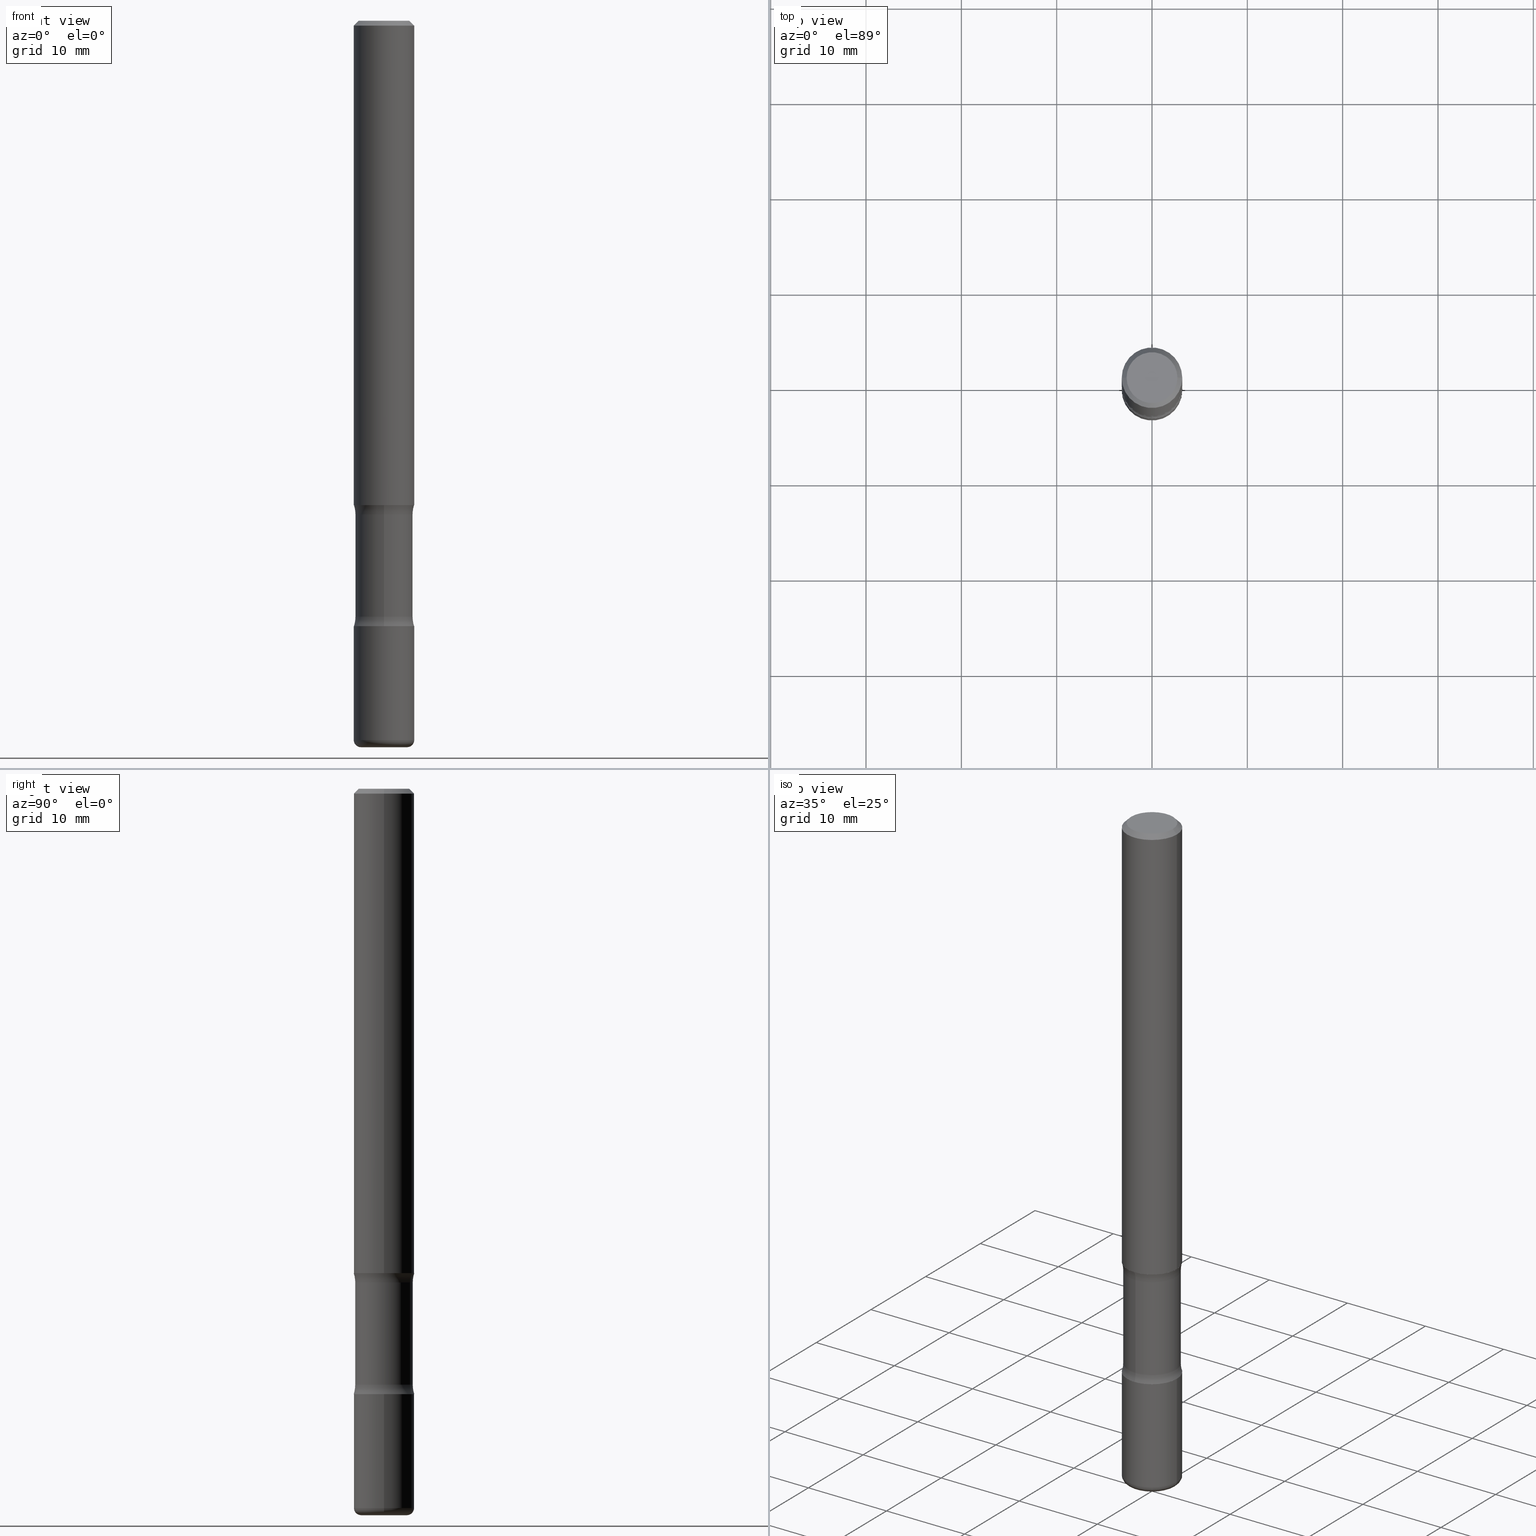
[diagram: canonical four-view strip — front | top / right | iso, engineering-drawing reading convention]
A machine part, canonical four-view strip (front | top / right | iso — engineering-drawing reading convention). The complete STEP part file that produces these views, byte-faithful:
ISO-10303-21;
HEADER;
FILE_DESCRIPTION (( 'STEP AP203' ),
    '1' );
FILE_NAME ('37797.STEP',
    '2024-03-02T00:22:59',
    ( '' ),
    ( '' ),
    'SwSTEP 2.0',
    'SolidWorks 2023',
    '' );
FILE_SCHEMA (( 'CONFIG_CONTROL_DESIGN' ));
ENDSEC;

DATA;
#1 = ORIENTED_EDGE ( 'NONE', *, *, #272, .F. ) ;
#2 = VECTOR ( 'NONE', #69, 39.37007874015748143 ) ;
#3 = CARTESIAN_POINT ( 'NONE',  ( -8.575622497213937192E-16, -0.1250000000000071609, -1.999999999999999334 ) ) ;
#4 = CARTESIAN_POINT ( 'NONE',  ( -1.043851414335219820E-46, 1.490343170380447200E-32, 4.268512490100411279E-18 ) ) ;
#5 = ORIENTED_EDGE ( 'NONE', *, *, #387, .F. ) ;
#6 = LINE ( 'NONE', #166, #11 ) ;
#7 = PLANE ( 'NONE',  #43 ) ;
#8 = DIRECTION ( 'NONE',  ( -1.000000000000000000, 6.982962677686265922E-15, -4.883557194083112340E-29 ) ) ;
#9 = ADVANCED_FACE ( 'NONE', ( #50 ), #171, .T. ) ;
#10 = CIRCLE ( 'NONE', #245, 0.1049999999999997879 ) ;
#11 = VECTOR ( 'NONE', #168, 39.37007874015748143 ) ;
#12 = DIRECTION ( 'NONE',  ( 2.543540764811263793E-29, -3.351036712181296563E-15, -1.000000000000000000 ) ) ;
#13 = CARTESIAN_POINT ( 'NONE',  ( 6.018222341714267541E-29, -8.592426509779609334E-15, -2.460968762510010066 ) ) ;
#14 = VERTEX_POINT ( 'NONE', #504 ) ;
#15 = FACE_OUTER_BOUND ( 'NONE', #219, .T. ) ;
#16 = ADVANCED_FACE ( 'NONE', ( #439 ), #514, .F. ) ;
#17 = CARTESIAN_POINT ( 'NONE',  ( -0.1250000000000000000, -9.481521156664016174E-15, -2.970000000000000195 ) ) ;
#18 = DIRECTION ( 'NONE',  ( 6.982962677686265133E-15, 1.000000000000000000, -4.601007147224022844E-15 ) ) ;
#19 = CC_DESIGN_PERSON_AND_ORGANIZATION_ASSIGNMENT ( #196, #499, ( #165 ) ) ;
#20 = ORIENTED_EDGE ( 'NONE', *, *, #411, .T. ) ;
#21 = CARTESIAN_POINT ( 'NONE',  ( 0.1250000000000000555, -9.601573681818646704E-15, -2.499999999999999556 ) ) ;
#22 = CARTESIAN_POINT ( 'NONE',  ( 0.1249999999999997918, -9.273918764983029686E-16, -0.02000000000000002470 ) ) ;
#23 = ORIENTED_EDGE ( 'NONE', *, *, #396, .T. ) ;
#24 = DIRECTION ( 'NONE',  ( 1.000000000000000000, -6.982962677686271444E-15, 4.883557194083115143E-29 ) ) ;
#25 = ORIENTED_EDGE ( 'NONE', *, *, #331, .F. ) ;
#26 = TOROIDAL_SURFACE ( 'NONE', #471, 0.2437500000000000500, 0.1249999999999999584 ) ;
#27 = VERTEX_POINT ( 'NONE', #461 ) ;
#28 = LOCAL_TIME ( 19, 22, 59.00000000000000000, #550 ) ;
#29 = DIRECTION ( 'NONE',  ( -2.445468806185136597E-29, 3.491481338843145583E-15, 1.000000000000000000 ) ) ;
#30 = CARTESIAN_POINT ( 'NONE',  ( -0.1250000000000000278, -2.638217732531448450E-15, -2.000000000000000000 ) ) ;
#31 = PRODUCT ( '37797', '37797', '', ( #206 ) ) ;
#32 = ORIENTED_EDGE ( 'NONE', *, *, #468, .T. ) ;
#33 = VERTEX_POINT ( 'NONE', #484 ) ;
#34 = ADVANCED_FACE ( 'NONE', ( #48 ), #7, .F. ) ;
#35 = CARTESIAN_POINT ( 'NONE',  ( -8.575622497213801114E-16, -0.1250000000000087153, -2.499999999999999112 ) ) ;
#36 = APPLICATION_PROTOCOL_DEFINITION ( 'international standard', 'config_control_design', 1994, #532 ) ;
#37 = CARTESIAN_POINT ( 'NONE',  ( 6.113672015462840371E-29, -8.728703347107863365E-15, -2.499999999999999556 ) ) ;
#38 = CC_DESIGN_DATE_AND_TIME_ASSIGNMENT ( #157, #466, ( #310 ) ) ;
#39 =( GEOMETRIC_REPRESENTATION_CONTEXT ( 3 ) GLOBAL_UNCERTAINTY_ASSIGNED_CONTEXT ( ( #293 ) ) GLOBAL_UNIT_ASSIGNED_CONTEXT ( ( #248, #512, #290 ) ) REPRESENTATION_CONTEXT ( 'NONE', 'WORKASPACE' ) );
#40 = CC_DESIGN_SECURITY_CLASSIFICATION ( #165, ( #237 ) ) ;
#41 = ADVANCED_FACE ( 'NONE', ( #131 ), #141, .T. ) ;
#42 = CARTESIAN_POINT ( 'NONE',  ( 0.000000000000000000, 0.000000000000000000, 0.000000000000000000 ) ) ;
#43 = AXIS2_PLACEMENT_3D ( 'NONE', #90, #233, #301 ) ;
#44 = CIRCLE ( 'NONE', #335, 0.1187499999999999806 ) ;
#45 = CARTESIAN_POINT ( 'NONE',  ( 0.09500000000000015377, -1.103308103074433958E-14, -2.970000000000000195 ) ) ;
#46 = EDGE_CURVE ( 'NONE', #62, #167, #178, .T. ) ;
#47 = DIRECTION ( 'NONE',  ( 6.982962677686266711E-15, 1.000000000000000000, -3.351036712181296563E-15 ) ) ;
#48 = FACE_OUTER_BOUND ( 'NONE', #366, .T. ) ;
#49 = AXIS2_PLACEMENT_3D ( 'NONE', #230, #533, #511 ) ;
#50 = FACE_OUTER_BOUND ( 'NONE', #359, .T. ) ;
#51 = FACE_OUTER_BOUND ( 'NONE', #274, .T. ) ;
#52 = DIRECTION ( 'NONE',  ( 2.543540764811263793E-29, -3.351036712181296563E-15, -1.000000000000000000 ) ) ;
#53 = DIRECTION ( 'NONE',  ( 1.000000000000000000, -6.982962677686271444E-15, 4.883557194083115143E-29 ) ) ;
#54 = DIRECTION ( 'NONE',  ( -2.445468806185136597E-29, 3.491481338843145583E-15, 1.000000000000000000 ) ) ;
#55 = CARTESIAN_POINT ( 'NONE',  ( 7.336406418555408669E-29, -1.047444401652943478E-14, -2.999999999999999556 ) ) ;
#56 = ORIENTED_EDGE ( 'NONE', *, *, #105, .T. ) ;
#57 = CARTESIAN_POINT ( 'NONE',  ( 6.113672015462840371E-29, -8.728703347107863365E-15, -2.499999999999999556 ) ) ;
#58 = CIRCLE ( 'NONE', #492, 0.1250000000000000555 ) ;
#59 = CARTESIAN_POINT ( 'NONE',  ( 0.1250000000000000000, -1.124256991107492790E-14, -2.970000000000000195 ) ) ;
#60 = ORIENTED_EDGE ( 'NONE', *, *, #250, .T. ) ;
#61 = EDGE_CURVE ( 'NONE', #370, #441, #316, .T. ) ;
#62 = VERTEX_POINT ( 'NONE', #17 ) ;
#63 = ORIENTED_EDGE ( 'NONE', *, *, #317, .T. ) ;
#64 = CARTESIAN_POINT ( 'NONE',  ( 7.336406418555408669E-29, -1.047444401652943478E-14, -2.999999999999999556 ) ) ;
#65 = TOROIDAL_SURFACE ( 'NONE', #525, 0.09500000000000015377, 0.02999999999999969705 ) ;
#66 = ORIENTED_EDGE ( 'NONE', *, *, #396, .F. ) ;
#67 = ADVANCED_FACE ( 'NONE', ( #15 ), #392, .T. ) ;
#68 = COORDINATED_UNIVERSAL_TIME_OFFSET ( 5, 0, .BEHIND. ) ;
#69 = DIRECTION ( 'NONE',  ( 2.543540764811263793E-29, -3.351036712181296563E-15, -1.000000000000000000 ) ) ;
#70 = DIRECTION ( 'NONE',  ( -2.445468806185136597E-29, 3.491481338843145583E-15, 1.000000000000000000 ) ) ;
#71 = DIRECTION ( 'NONE',  ( 2.543540764811263793E-29, -3.351036712181296563E-15, -1.000000000000000000 ) ) ;
#72 = EDGE_CURVE ( 'NONE', #198, #27, #409, .T. ) ;
#73 = AXIS2_PLACEMENT_3D ( 'NONE', #89, #172, #226 ) ;
#74 = ORGANIZATION ( 'UNSPECIFIED', 'UNSPECIFIED', '' ) ;
#75 = ORIENTED_EDGE ( 'NONE', *, *, #105, .F. ) ;
#76 = DIRECTION ( 'NONE',  ( 6.982962677686265922E-15, 1.000000000000000000, -4.370956789862819572E-15 ) ) ;
#77 = APPLICATION_PROTOCOL_DEFINITION ( 'international standard', 'config_control_design', 1994, #251 ) ;
#78 = CIRCLE ( 'NONE', #376, 0.1250000000000000278 ) ;
#79 = ADVANCED_FACE ( 'NONE', ( #169 ), #383, .F. ) ;
#80 = DIRECTION ( 'NONE',  ( -1.000000000000000000, 6.982962677686265922E-15, -4.883557194083112340E-29 ) ) ;
#81 = CARTESIAN_POINT ( 'NONE',  ( 7.385442397868472267E-29, -1.040422170319851125E-14, -2.999999999999999556 ) ) ;
#82 = CARTESIAN_POINT ( 'NONE',  ( 4.938696304666674034E-29, -7.187535714856152812E-15, -2.039031237489990378 ) ) ;
#83 = DIRECTION ( 'NONE',  ( 1.000000000000000000, -6.982962677686269077E-15, 0.000000000000000000 ) ) ;
#84 = VERTEX_POINT ( 'NONE', #528 ) ;
#85 = AXIS2_PLACEMENT_3D ( 'NONE', #305, #54, #87 ) ;
#86 = AXIS2_PLACEMENT_3D ( 'NONE', #4, #122, #287 ) ;
#87 = DIRECTION ( 'NONE',  ( 1.000000000000000000, -6.982962677686266711E-15, 4.876176775795935793E-29 ) ) ;
#88 = ORIENTED_EDGE ( 'NONE', *, *, #243, .T. ) ;
#89 = CARTESIAN_POINT ( 'NONE',  ( 4.890937612370279289E-31, -6.982962677686299005E-17, -0.02000000000000002470 ) ) ;
#90 = CARTESIAN_POINT ( 'NONE',  ( 7.332110811570564466E-16, 0.1049999999999997879, -3.644712843334793412E-16 ) ) ;
#91 = ORIENTED_EDGE ( 'NONE', *, *, #289, .F. ) ;
#92 = CARTESIAN_POINT ( 'NONE',  ( -0.1249999999999997918, 8.030407079339189559E-16, -0.02000000000000002470 ) ) ;
#93 = ORIENTED_EDGE ( 'NONE', *, *, #425, .F. ) ;
#94 = AXIS2_PLACEMENT_3D ( 'NONE', #368, #447, #363 ) ;
#95 = AXIS2_PLACEMENT_3D ( 'NONE', #57, #229, #139 ) ;
#96 = ADVANCED_FACE ( 'NONE', ( #174 ), #26, .F. ) ;
#97 = EDGE_LOOP ( 'NONE', ( #436, #177 ) ) ;
#98 = DIRECTION ( 'NONE',  ( -2.445468806185136597E-29, 3.491481338843145583E-15, 1.000000000000000000 ) ) ;
#99 = APPROVAL ( #284, 'UNSPECIFIED' ) ;
#100 = CARTESIAN_POINT ( 'NONE',  ( 0.1049999999999997879, -8.238720831321562839E-16, 4.268512490105855498E-18 ) ) ;
#101 = ORIENTED_EDGE ( 'NONE', *, *, #183, .F. ) ;
#102 = FACE_OUTER_BOUND ( 'NONE', #184, .T. ) ;
#103 = DIRECTION ( 'NONE',  ( 2.543540764811263793E-29, -3.351036712181296563E-15, -1.000000000000000000 ) ) ;
#104 = ORIENTED_EDGE ( 'NONE', *, *, #425, .T. ) ;
#105 = EDGE_CURVE ( 'NONE', #84, #150, #10, .T. ) ;
#106 = AXIS2_PLACEMENT_3D ( 'NONE', #82, #395, #47 ) ;
#107 = AXIS2_PLACEMENT_3D ( 'NONE', #513, #291, #249 ) ;
#108 = DIRECTION ( 'NONE',  ( 1.000000000000000000, -6.982962677686270655E-15, 0.000000000000000000 ) ) ;
#109 = CIRCLE ( 'NONE', #86, 0.1049999999999997879 ) ;
#110 = DIRECTION ( 'NONE',  ( -2.445468806185136597E-29, 3.491481338843145583E-15, 1.000000000000000000 ) ) ;
#111 = CARTESIAN_POINT ( 'NONE',  ( 8.292268179753179304E-16, 0.1187499999999896000, -3.000000000000000444 ) ) ;
#112 = CALENDAR_DATE ( 2024, 1, 3 ) ;
#113 = MANIFOLD_SOLID_BREP ( 'Body-Move/Copy2[2]', #535 ) ;
#114 = PERSON_AND_ORGANIZATION ( #209, #74 ) ;
#115 = DIRECTION ( 'NONE',  ( 2.543540764811263793E-29, -3.351036712181296563E-15, -1.000000000000000000 ) ) ;
#116 = TOROIDAL_SURFACE ( 'NONE', #224, 0.2437500000000000222, 0.1250000000000000278 ) ;
#117 = AXIS2_PLACEMENT_3D ( 'NONE', #474, #80, #292 ) ;
#118 = PLANE ( 'NONE',  #393 ) ;
#119 = DATE_AND_TIME ( #510, #473 ) ;
#120 = EDGE_LOOP ( 'NONE', ( #201, #414, #134, #5 ) ) ;
#121 = LINE ( 'NONE', #337, #515 ) ;
#122 = DIRECTION ( 'NONE',  ( -2.445468806185136597E-29, 3.491481338843145583E-15, 1.000000000000000000 ) ) ;
#123 = EDGE_CURVE ( 'NONE', #319, #14, #235, .T. ) ;
#124 = DIRECTION ( 'NONE',  ( 1.000000000000000000, -6.982962677686266711E-15, 0.000000000000000000 ) ) ;
#125 = AXIS2_PLACEMENT_3D ( 'NONE', #537, #140, #309 ) ;
#126 = EDGE_LOOP ( 'NONE', ( #91, #338, #470, #352 ) ) ;
#127 = CIRCLE ( 'NONE', #236, 0.1187499999999999806 ) ;
#128 = CC_DESIGN_APPROVAL ( #218, ( #310 ) ) ;
#129 = CC_DESIGN_PERSON_AND_ORGANIZATION_ASSIGNMENT ( #416, #506, ( #31 ) ) ;
#130 = CARTESIAN_POINT ( 'NONE',  ( 4.941179176714029352E-29, -7.183980100768040122E-15, -2.039031237489990378 ) ) ;
#131 = FACE_OUTER_BOUND ( 'NONE', #406, .T. ) ;
#132 = EDGE_CURVE ( 'NONE', #357, #296, #549, .T. ) ;
#133 = DIRECTION ( 'NONE',  ( -2.445468806185136597E-29, 3.491481338843145583E-15, 1.000000000000000000 ) ) ;
#134 = ORIENTED_EDGE ( 'NONE', *, *, #404, .T. ) ;
#135 = ADVANCED_FACE ( 'NONE', ( #347 ), #349, .T. ) ;
#136 = DIRECTION ( 'NONE',  ( 2.543540764811263793E-29, -3.351036712181296563E-15, -1.000000000000000000 ) ) ;
#137 = CLOSED_SHELL ( 'NONE', ( #135, #358, #67, #282, #538, #494 ) ) ;
#138 = AXIS2_PLACEMENT_3D ( 'NONE', #297, #160, #391 ) ;
#139 = DIRECTION ( 'NONE',  ( 1.000000000000000000, -6.982962677686267499E-15, 0.000000000000000000 ) ) ;
#140 = DIRECTION ( 'NONE',  ( -2.445468806185136597E-29, 3.491481338843145583E-15, 1.000000000000000000 ) ) ;
#141 = CYLINDRICAL_SURFACE ( 'NONE', #85, 0.1249999999999999167 ) ;
#142 = ORIENTED_EDGE ( 'NONE', *, *, #468, .F. ) ;
#143 = EDGE_CURVE ( 'NONE', #441, #370, #501, .T. ) ;
#144 = CARTESIAN_POINT ( 'NONE',  ( 0.000000000000000000, 0.000000000000000000, 0.000000000000000000 ) ) ;
#145 = VERTEX_POINT ( 'NONE', #430 ) ;
#146 = CONICAL_SURFACE ( 'NONE', #299, 0.1249999999999997918, 0.7853981633974477239 ) ;
#147 = ORIENTED_EDGE ( 'NONE', *, *, #159, .F. ) ;
#148 = ADVANCED_FACE ( 'NONE', ( #261 ), #227, .F. ) ;
#149 = CARTESIAN_POINT ( 'NONE',  ( 8.292268179752933771E-16, 0.1187499999999928058, -2.039031237489990378 ) ) ;
#150 = VERTEX_POINT ( 'NONE', #100 ) ;
#151 = FACE_OUTER_BOUND ( 'NONE', #120, .T. ) ;
#152 = DIRECTION ( 'NONE',  ( -2.445468806185136597E-29, 3.491481338843145583E-15, 1.000000000000000000 ) ) ;
#153 = APPROVAL ( #373, 'UNSPECIFIED' ) ;
#154 = ORIENTED_EDGE ( 'NONE', *, *, #272, .T. ) ;
#155 = VECTOR ( 'NONE', #353, 39.37007874015748143 ) ;
#156 = APPROVAL_DATE_TIME ( #498, #153 ) ;
#157 = DATE_AND_TIME ( #112, #28 ) ;
#158 = CARTESIAN_POINT ( 'NONE',  ( 1.374422904781070061E-28, 2.198688627549184381E-15, -2.500000000000000000 ) ) ;
#159 = EDGE_CURVE ( 'NONE', #343, #225, #340, .T. ) ;
#160 = DIRECTION ( 'NONE',  ( 2.543540764811263793E-29, -3.351036712181296563E-15, -1.000000000000000000 ) ) ;
#161 = CARTESIAN_POINT ( 'NONE',  ( 6.014394471806022296E-29, -8.597908237357040299E-15, -2.460968762510010066 ) ) ;
#162 = DESIGN_CONTEXT ( 'detailed design', #532, 'design' ) ;
#163 = AXIS2_PLACEMENT_3D ( 'NONE', #223, #344, #437 ) ;
#164 = CONICAL_SURFACE ( 'NONE', #73, 0.1249999999999997918, 0.7853981633974477239 ) ;
#165 = SECURITY_CLASSIFICATION ( '', '', #413 ) ;
#166 = CARTESIAN_POINT ( 'NONE',  ( -0.1249999999999999167, 8.881784197001246407E-16, -6.148668862818628023E-30 ) ) ;
#167 = VERTEX_POINT ( 'NONE', #59 ) ;
#168 = DIRECTION ( 'NONE',  ( -2.445468806185136877E-29, 3.491481338843145188E-15, 1.000000000000000000 ) ) ;
#169 = FACE_OUTER_BOUND ( 'NONE', #276, .T. ) ;
#170 = AXIS2_PLACEMENT_3D ( 'NONE', #144, #207, #286 ) ;
#171 = CYLINDRICAL_SURFACE ( 'NONE', #325, 0.1187499999999999944 ) ;
#172 = DIRECTION ( 'NONE',  ( 2.445468806185136597E-29, -3.491481338843145583E-15, -1.000000000000000000 ) ) ;
#173 = CARTESIAN_POINT ( 'NONE',  ( 6.018222341714267541E-29, -8.592426509779609334E-15, -2.460968762510010066 ) ) ;
#174 = FACE_OUTER_BOUND ( 'NONE', #234, .T. ) ;
#175 = ADVANCED_BREP_SHAPE_REPRESENTATION ( '37797', ( #496, #113, #311, #170 ), #39 ) ;
#176 = DIRECTION ( 'NONE',  ( 1.000000000000000000, -6.982962677686265922E-15, 4.876206205277404118E-29 ) ) ;
#177 = ORIENTED_EDGE ( 'NONE', *, *, #256, .T. ) ;
#178 = CIRCLE ( 'NONE', #334, 0.1250000000000001388 ) ;
#179 = VECTOR ( 'NONE', #326, 39.37007874015748143 ) ;
#180 = CARTESIAN_POINT ( 'NONE',  ( 4.890937612370273194E-29, -6.982962677686291165E-15, -2.000000000000000000 ) ) ;
#181 = CARTESIAN_POINT ( 'NONE',  ( 0.1249999999999999167, -8.728703347107827472E-16, 6.095220969744915537E-30 ) ) ;
#182 = DIRECTION ( 'NONE',  ( 2.543540764811263793E-29, -3.351036712181296563E-15, -1.000000000000000000 ) ) ;
#183 = EDGE_CURVE ( 'NONE', #475, #265, #419, .T. ) ;
#184 = EDGE_LOOP ( 'NONE', ( #531, #220, #23, #269 ) ) ;
#185 = DIRECTION ( 'NONE',  ( -2.445468806185136597E-29, 3.491481338843145583E-15, 1.000000000000000000 ) ) ;
#186 = DIRECTION ( 'NONE',  ( -2.445468806185136597E-29, 3.491481338843145583E-15, 1.000000000000000000 ) ) ;
#187 = ORIENTED_EDGE ( 'NONE', *, *, #132, .F. ) ;
#188 = ORIENTED_EDGE ( 'NONE', *, *, #339, .T. ) ;
#189 = CC_DESIGN_APPROVAL ( #99, ( #237 ) ) ;
#190 = VECTOR ( 'NONE', #244, 39.37007874015748143 ) ;
#191 = APPROVAL_DATE_TIME ( #283, #99 ) ;
#192 = CIRCLE ( 'NONE', #361, 0.02999999999999969705 ) ;
#193 = CARTESIAN_POINT ( 'NONE',  ( -8.146841372352953582E-16, -0.1187500000000103889, -2.999999999999999112 ) ) ;
#194 = DIRECTION ( 'NONE',  ( 1.000000000000000000, -6.982962677686265922E-15, 4.876176775795935793E-29 ) ) ;
#195 = ORIENTED_EDGE ( 'NONE', *, *, #123, .T. ) ;
#196 = PERSON_AND_ORGANIZATION ( #209, #74 ) ;
#197 = PRODUCT_DEFINITION_SHAPE ( 'NONE', 'NONE',  #310 ) ;
#198 = VERTEX_POINT ( 'NONE', #35 ) ;
#199 = DIRECTION ( 'NONE',  ( 1.000000000000000000, -6.982962677686267499E-15, 0.000000000000000000 ) ) ;
#200 = ORIENTED_EDGE ( 'NONE', *, *, #231, .F. ) ;
#201 = ORIENTED_EDGE ( 'NONE', *, *, #485, .F. ) ;
#202 = DIRECTION ( 'NONE',  ( 2.445468806185136597E-29, -3.491481338843145583E-15, -1.000000000000000000 ) ) ;
#203 = DATE_TIME_ROLE ( 'classification_date' ) ;
#204 = LINE ( 'NONE', #418, #190 ) ;
#205 = LOCAL_TIME ( 19, 22, 59.00000000000000000, #68 ) ;
#206 = MECHANICAL_CONTEXT ( 'NONE', #251, 'mechanical' ) ;
#207 = DIRECTION ( 'NONE',  ( 0.000000000000000000, 0.000000000000000000, 1.000000000000000000 ) ) ;
#208 = ADVANCED_FACE ( 'NONE', ( #238 ), #116, .F. ) ;
#209 = PERSON ( 'UNSPECIFIED', 'UNSPECIFIED', 'UNSPECIFIED', ('UNSPECIFIED'), ('UNSPECIFIED'), ('UNSPECIFIED') ) ;
#210 = APPROVAL_ROLE ( '' ) ;
#211 = DIRECTION ( 'NONE',  ( -2.543540764811263793E-29, 3.351036712181296563E-15, 1.000000000000000000 ) ) ;
#212 = EDGE_LOOP ( 'NONE', ( #495, #412 ) ) ;
#213 = DIRECTION ( 'NONE',  ( -0.7071067811865471286, 2.468850131082252722E-15, -0.7071067811865479058 ) ) ;
#214 = AXIS2_PLACEMENT_3D ( 'NONE', #37, #12, #479 ) ;
#215 = VECTOR ( 'NONE', #362, 39.37007874015748143 ) ;
#216 = DIRECTION ( 'NONE',  ( 6.982962677686265133E-15, 1.000000000000000000, -4.601007147224022844E-15 ) ) ;
#217 = ORIENTED_EDGE ( 'NONE', *, *, #345, .T. ) ;
#218 = APPROVAL ( #380, 'UNSPECIFIED' ) ;
#219 = EDGE_LOOP ( 'NONE', ( #101, #509 ) ) ;
#220 = ORIENTED_EDGE ( 'NONE', *, *, #529, .T. ) ;
#221 = CYLINDRICAL_SURFACE ( 'NONE', #138, 0.1187499999999999944 ) ;
#222 = CARTESIAN_POINT ( 'NONE',  ( 7.263042354369856275E-29, -1.036969957636414298E-14, -2.970000000000000195 ) ) ;
#223 = CARTESIAN_POINT ( 'NONE',  ( -1.672246386956750904E-15, -0.2437500000000086819, -2.460968762510009622 ) ) ;
#224 = AXIS2_PLACEMENT_3D ( 'NONE', #497, #103, #280 ) ;
#225 = VERTEX_POINT ( 'NONE', #149 ) ;
#226 = DIRECTION ( 'NONE',  ( -1.000000000000000000, 6.982962677686266711E-15, 0.000000000000000000 ) ) ;
#227 = PLANE ( 'NONE',  #270 ) ;
#228 = EDGE_LOOP ( 'NONE', ( #187, #1 ) ) ;
#229 = DIRECTION ( 'NONE',  ( -2.445468806185136597E-29, 3.491481338843145583E-15, 1.000000000000000000 ) ) ;
#230 = CARTESIAN_POINT ( 'NONE',  ( 7.263042354369856275E-29, -1.036969957636414298E-14, -2.970000000000000195 ) ) ;
#231 = EDGE_CURVE ( 'NONE', #225, #488, #555, .T. ) ;
#232 = CARTESIAN_POINT ( 'NONE',  ( -0.09500000000000015377, -9.694683977392046419E-15, -2.970000000000000195 ) ) ;
#233 = DIRECTION ( 'NONE',  ( 2.438088387897960049E-29, -3.491481338843145188E-15, -1.000000000000000000 ) ) ;
#234 = EDGE_LOOP ( 'NONE', ( #542, #465, #304, #93 ) ) ;
#235 = CIRCLE ( 'NONE', #277, 0.1249999999999997918 ) ;
#236 = AXIS2_PLACEMENT_3D ( 'NONE', #483, #399, #18 ) ;
#237 = PRODUCT_DEFINITION_FORMATION_WITH_SPECIFIED_SOURCE ( 'ANY', '', #31, .NOT_KNOWN. ) ;
#238 = FACE_OUTER_BOUND ( 'NONE', #446, .T. ) ;
#239 = ORIENTED_EDGE ( 'NONE', *, *, #183, .T. ) ;
#240 = ORIENTED_EDGE ( 'NONE', *, *, #243, .F. ) ;
#241 = CIRCLE ( 'NONE', #246, 0.1187499999999999944 ) ;
#242 = ORIENTED_EDGE ( 'NONE', *, *, #508, .F. ) ;
#243 = EDGE_CURVE ( 'NONE', #167, #273, #204, .T. ) ;
#244 = DIRECTION ( 'NONE',  ( -2.445468806185136877E-29, 3.491481338843145188E-15, 1.000000000000000000 ) ) ;
#245 = AXIS2_PLACEMENT_3D ( 'NONE', #530, #133, #176 ) ;
#246 = AXIS2_PLACEMENT_3D ( 'NONE', #130, #257, #381 ) ;
#247 = CARTESIAN_POINT ( 'NONE',  ( 8.292268179753040267E-16, 0.1187499999999913763, -2.460968762510010510 ) ) ;
#248 =( CONVERSION_BASED_UNIT ( 'INCH', #259 ) LENGTH_UNIT ( ) NAMED_UNIT ( #422 ) );
#249 = DIRECTION ( 'NONE',  ( -1.000000000000000000, 6.982962677686265922E-15, -4.876176775795935793E-29 ) ) ;
#250 = EDGE_CURVE ( 'NONE', #33, #198, #453, .T. ) ;
#251 = APPLICATION_CONTEXT ( 'configuration controlled 3d designs of mechanical parts and assemblies' ) ;
#252 = ORIENTED_EDGE ( 'NONE', *, *, #72, .F. ) ;
#253 = AXIS2_PLACEMENT_3D ( 'NONE', #64, #29, #329 ) ;
#254 = DIRECTION ( 'NONE',  ( 1.000000000000000000, -6.860497997771530774E-15, 4.842518830249131545E-29 ) ) ;
#255 = DIRECTION ( 'NONE',  ( 6.982962677686265922E-15, 1.000000000000000000, -4.370956789862816416E-15 ) ) ;
#256 = EDGE_CURVE ( 'NONE', #145, #273, #463, .T. ) ;
#257 = DIRECTION ( 'NONE',  ( 2.543540764811263793E-29, -3.351036712181296563E-15, -1.000000000000000000 ) ) ;
#258 = DIRECTION ( 'NONE',  ( 2.438088387897960049E-29, -3.491481338843145188E-15, -1.000000000000000000 ) ) ;
#259 = LENGTH_MEASURE_WITH_UNIT ( LENGTH_MEASURE( 0.02539999999999999897 ), #295 );
#260 = EDGE_LOOP ( 'NONE', ( #239, #188, #520, #66 ) ) ;
#261 = FACE_OUTER_BOUND ( 'NONE', #228, .T. ) ;
#262 = CIRCLE ( 'NONE', #307, 0.02999999999999969705 ) ;
#263 = ORIENTED_EDGE ( 'NONE', *, *, #411, .F. ) ;
#264 = DIRECTION ( 'NONE',  ( 1.000000000000000000, -6.982962677686270655E-15, 0.000000000000000000 ) ) ;
#265 = VERTEX_POINT ( 'NONE', #308 ) ;
#266 = EDGE_CURVE ( 'NONE', #27, #488, #127, .T. ) ;
#267 = DIRECTION ( 'NONE',  ( -2.445468806185136597E-29, 3.491481338843145583E-15, 1.000000000000000000 ) ) ;
#268 = ORIENTED_EDGE ( 'NONE', *, *, #123, .F. ) ;
#269 = ORIENTED_EDGE ( 'NONE', *, *, #46, .F. ) ;
#270 = AXIS2_PLACEMENT_3D ( 'NONE', #397, #534, #194 ) ;
#271 = APPROVAL_PERSON_ORGANIZATION ( #114, #99, #557 ) ;
#272 = EDGE_CURVE ( 'NONE', #296, #357, #350, .T. ) ;
#273 = VERTEX_POINT ( 'NONE', #21 ) ;
#274 = EDGE_LOOP ( 'NONE', ( #25, #75, #369, #195 ) ) ;
#275 = CALENDAR_DATE ( 2024, 1, 3 ) ;
#276 = EDGE_LOOP ( 'NONE', ( #252, #382, #104, #32 ) ) ;
#277 = AXIS2_PLACEMENT_3D ( 'NONE', #303, #354, #539 ) ;
#278 = AXIS2_PLACEMENT_3D ( 'NONE', #42, #70, #519 ) ;
#279 = FACE_OUTER_BOUND ( 'NONE', #212, .T. ) ;
#280 = DIRECTION ( 'NONE',  ( 6.982962677686266711E-15, 1.000000000000000000, -3.351036712181296563E-15 ) ) ;
#281 = DIRECTION ( 'NONE',  ( 1.000000000000000000, -6.982962677686266711E-15, 4.876176775795935232E-29 ) ) ;
#282 = ADVANCED_FACE ( 'NONE', ( #102 ), #288, .T. ) ;
#283 = DATE_AND_TIME ( #275, #426 ) ;
#284 = APPROVAL_STATUS ( 'not_yet_approved' ) ;
#285 = COORDINATED_UNIVERSAL_TIME_OFFSET ( 5, 0, .BEHIND. ) ;
#286 = DIRECTION ( 'NONE',  ( 1.000000000000000000, 0.000000000000000000, 0.000000000000000000 ) ) ;
#287 = DIRECTION ( 'NONE',  ( 1.000000000000000000, -6.982962677686265922E-15, 4.876206205277404118E-29 ) ) ;
#288 = TOROIDAL_SURFACE ( 'NONE', #481, 0.09500000000000015377, 0.02999999999999969705 ) ;
#289 = EDGE_CURVE ( 'NONE', #343, #27, #394, .T. ) ;
#290 =( NAMED_UNIT ( * ) SI_UNIT ( $, .STERADIAN. ) SOLID_ANGLE_UNIT ( ) );
#291 = DIRECTION ( 'NONE',  ( 2.438088387897960049E-29, -3.491481338843145188E-15, -1.000000000000000000 ) ) ;
#292 = DIRECTION ( 'NONE',  ( -6.982962677686265922E-15, -1.000000000000000000, 0.000000000000000000 ) ) ;
#293 = UNCERTAINTY_MEASURE_WITH_UNIT (LENGTH_MEASURE( 1.000000000000000082E-05 ), #248, 'distance_accuracy_value', 'NONE');
#294 = APPROVAL_DATE_TIME ( #119, #218 ) ;
#295 =( LENGTH_UNIT ( ) NAMED_UNIT ( * ) SI_UNIT ( $, .METRE. ) );
#296 = VERTEX_POINT ( 'NONE', #30 ) ;
#297 = CARTESIAN_POINT ( 'NONE',  ( 7.385442397868472267E-29, -1.040422170319851125E-14, -2.999999999999999556 ) ) ;
#298 = AXIS2_PLACEMENT_3D ( 'NONE', #401, #435, #440 ) ;
#299 = AXIS2_PLACEMENT_3D ( 'NONE', #456, #202, #375 ) ;
#300 = ADVANCED_FACE ( 'NONE', ( #279 ), #455, .F. ) ;
#301 = DIRECTION ( 'NONE',  ( -1.000000000000000000, 6.982962677686265922E-15, -4.876176775795935793E-29 ) ) ;
#302 = CARTESIAN_POINT ( 'NONE',  ( 0.1250000000000000278, -7.855833012397075293E-15, -2.000000000000000000 ) ) ;
#303 = CARTESIAN_POINT ( 'NONE',  ( 4.890937612370279289E-31, -6.982962677686299005E-17, -0.02000000000000002470 ) ) ;
#304 = ORIENTED_EDGE ( 'NONE', *, *, #266, .T. ) ;
#305 = CARTESIAN_POINT ( 'NONE',  ( 0.000000000000000000, 0.000000000000000000, 0.000000000000000000 ) ) ;
#306 = ADVANCED_FACE ( 'NONE', ( #527 ), #221, .T. ) ;
#307 = AXIS2_PLACEMENT_3D ( 'NONE', #45, #379, #521 ) ;
#308 = CARTESIAN_POINT ( 'NONE',  ( -0.09500000000000015377, -9.640474787110678770E-15, -2.999999999999999556 ) ) ;
#309 = DIRECTION ( 'NONE',  ( 1.000000000000000000, -6.982962677686266711E-15, 4.876176775795935232E-29 ) ) ;
#310 = PRODUCT_DEFINITION ( 'UNKNOWN', '', #237, #162 ) ;
#311 = MANIFOLD_SOLID_BREP ( 'Body-Move/Copy2[4]', #360 ) ;
#312 = DIRECTION ( 'NONE',  ( -2.445468806185136597E-29, 3.491481338843145583E-15, 1.000000000000000000 ) ) ;
#313 = ORIENTED_EDGE ( 'NONE', *, *, #345, .F. ) ;
#314 = DIRECTION ( 'NONE',  ( -2.445468806185136877E-29, 3.491481338843145188E-15, 1.000000000000000000 ) ) ;
#315 = ORIENTED_EDGE ( 'NONE', *, *, #317, .F. ) ;
#316 = CIRCLE ( 'NONE', #298, 0.1250000000000001388 ) ;
#317 = EDGE_CURVE ( 'NONE', #225, #343, #241, .T. ) ;
#318 = CARTESIAN_POINT ( 'NONE',  ( 6.113672015462840371E-29, -8.728703347107863365E-15, -2.499999999999999556 ) ) ;
#319 = VERTEX_POINT ( 'NONE', #92 ) ;
#320 = ORIENTED_EDGE ( 'NONE', *, *, #404, .F. ) ;
#321 = CARTESIAN_POINT ( 'NONE',  ( 7.263042354369856275E-29, -1.036969957636414298E-14, -2.970000000000000195 ) ) ;
#322 = EDGE_LOOP ( 'NONE', ( #60, #546 ) ) ;
#323 = APPROVAL_ROLE ( '' ) ;
#324 = ADVANCED_FACE ( 'NONE', ( #51 ), #164, .T. ) ;
#325 = AXIS2_PLACEMENT_3D ( 'NONE', #81, #429, #390 ) ;
#326 = DIRECTION ( 'NONE',  ( -2.445468806185136877E-29, 3.491481338843145188E-15, 1.000000000000000000 ) ) ;
#327 = PERSON_AND_ORGANIZATION ( #209, #74 ) ;
#328 = SHAPE_DEFINITION_REPRESENTATION ( #197, #175 ) ;
#329 = DIRECTION ( 'NONE',  ( 1.000000000000000000, -6.982962677686270655E-15, 0.000000000000000000 ) ) ;
#330 = CALENDAR_DATE ( 2024, 1, 3 ) ;
#331 = EDGE_CURVE ( 'NONE', #150, #14, #443, .T. ) ;
#332 = CARTESIAN_POINT ( 'NONE',  ( 8.728703347108326426E-16, 0.1249999999999930611, -2.000000000000000444 ) ) ;
#333 = PLANE ( 'NONE',  #107 ) ;
#334 = AXIS2_PLACEMENT_3D ( 'NONE', #222, #267, #264 ) ;
#335 = AXIS2_PLACEMENT_3D ( 'NONE', #161, #115, #216 ) ;
#336 = APPROVAL_PERSON_ORGANIZATION ( #556, #218, #210 ) ;
#337 = CARTESIAN_POINT ( 'NONE',  ( -0.1249999999999997918, 8.030407079339189559E-16, -0.02000000000000002470 ) ) ;
#338 = ORIENTED_EDGE ( 'NONE', *, *, #159, .T. ) ;
#339 = EDGE_CURVE ( 'NONE', #265, #62, #192, .T. ) ;
#340 = CIRCLE ( 'NONE', #94, 0.1187499999999999944 ) ;
#341 = DIRECTION ( 'NONE',  ( 6.982962677686266711E-15, 1.000000000000000000, -3.351036712181296563E-15 ) ) ;
#342 = CC_DESIGN_PERSON_AND_ORGANIZATION_ASSIGNMENT ( #377, #372, ( #310 ) ) ;
#343 = VERTEX_POINT ( 'NONE', #541 ) ;
#344 = DIRECTION ( 'NONE',  ( 1.000000000000000000, -6.860497997771530774E-15, 4.842518830249131545E-29 ) ) ;
#345 = EDGE_CURVE ( 'NONE', #357, #14, #491, .T. ) ;
#346 = CARTESIAN_POINT ( 'NONE',  ( 7.263042354369856275E-29, -1.036969957636414298E-14, -2.970000000000000195 ) ) ;
#347 = FACE_OUTER_BOUND ( 'NONE', #493, .T. ) ;
#348 = CC_DESIGN_PERSON_AND_ORGANIZATION_ASSIGNMENT ( #407, #457, ( #237 ) ) ;
#349 = CYLINDRICAL_SURFACE ( 'NONE', #125, 0.1250000000000001110 ) ;
#350 = CIRCLE ( 'NONE', #503, 0.1250000000000000278 ) ;
#351 = CIRCLE ( 'NONE', #117, 0.1249999999999999584 ) ;
#352 = ORIENTED_EDGE ( 'NONE', *, *, #266, .F. ) ;
#353 = DIRECTION ( 'NONE',  ( 0.7071067811865471286, -7.319954787623254468E-15, -0.7071067811865479058 ) ) ;
#354 = DIRECTION ( 'NONE',  ( -2.445468806185136597E-29, 3.491481338843145583E-15, 1.000000000000000000 ) ) ;
#355 = ORIENTED_EDGE ( 'NONE', *, *, #517, .T. ) ;
#356 = DIRECTION ( 'NONE',  ( -1.000000000000000000, 7.105427357600997914E-15, 0.000000000000000000 ) ) ;
#357 = VERTEX_POINT ( 'NONE', #302 ) ;
#358 = ADVANCED_FACE ( 'NONE', ( #476 ), #65, .T. ) ;
#359 = EDGE_LOOP ( 'NONE', ( #63, #415, #142, #200 ) ) ;
#360 = CLOSED_SHELL ( 'NONE', ( #9, #96, #208, #16, #300, #460, #79, #306 ) ) ;
#361 = AXIS2_PLACEMENT_3D ( 'NONE', #232, #400, #356 ) ;
#362 = DIRECTION ( 'NONE',  ( 2.543540764811263793E-29, -3.351036712181296563E-15, -1.000000000000000000 ) ) ;
#363 = DIRECTION ( 'NONE',  ( 6.982962677686265133E-15, 1.000000000000000000, -2.300503573612011422E-15 ) ) ;
#364 = EDGE_LOOP ( 'NONE', ( #263, #315, #523, #405 ) ) ;
#365 = FACE_OUTER_BOUND ( 'NONE', #452, .T. ) ;
#366 = EDGE_LOOP ( 'NONE', ( #56, #548 ) ) ;
#367 = EDGE_CURVE ( 'NONE', #167, #62, #472, .T. ) ;
#368 = CARTESIAN_POINT ( 'NONE',  ( 4.941179176714029352E-29, -7.183980100768040122E-15, -2.039031237489990378 ) ) ;
#369 = ORIENTED_EDGE ( 'NONE', *, *, #387, .T. ) ;
#370 = VERTEX_POINT ( 'NONE', #332 ) ;
#371 = CC_DESIGN_DATE_AND_TIME_ASSIGNMENT ( #417, #203, ( #165 ) ) ;
#372 = PERSON_AND_ORGANIZATION_ROLE ( 'creator' ) ;
#373 = APPROVAL_STATUS ( 'not_yet_approved' ) ;
#374 = AXIS2_PLACEMENT_3D ( 'NONE', #173, #182, #341 ) ;
#375 = DIRECTION ( 'NONE',  ( -1.000000000000000000, 6.982962677686266711E-15, 0.000000000000000000 ) ) ;
#376 = AXIS2_PLACEMENT_3D ( 'NONE', #507, #8, #518 ) ;
#377 = PERSON_AND_ORGANIZATION ( #209, #74 ) ;
#378 = FACE_OUTER_BOUND ( 'NONE', #322, .T. ) ;
#379 = DIRECTION ( 'NONE',  ( -6.982962677686266711E-15, -1.000000000000000000, 3.491481338843145583E-15 ) ) ;
#380 = APPROVAL_STATUS ( 'not_yet_approved' ) ;
#381 = DIRECTION ( 'NONE',  ( 6.982962677686265133E-15, 1.000000000000000000, -2.300503573612011422E-15 ) ) ;
#382 = ORIENTED_EDGE ( 'NONE', *, *, #250, .F. ) ;
#383 = TOROIDAL_SURFACE ( 'NONE', #374, 0.2437500000000000500, 0.1249999999999999584 ) ;
#384 = CIRCLE ( 'NONE', #536, 0.1250000000000000278 ) ;
#385 = DIRECTION ( 'NONE',  ( 2.543540764811263793E-29, -3.351036712181296563E-15, -1.000000000000000000 ) ) ;
#386 = CARTESIAN_POINT ( 'NONE',  ( 0.09500000000000015377, -1.113782547090963138E-14, -2.999999999999999556 ) ) ;
#387 = EDGE_CURVE ( 'NONE', #84, #319, #121, .T. ) ;
#388 = ORIENTED_EDGE ( 'NONE', *, *, #143, .T. ) ;
#389 = CARTESIAN_POINT ( 'NONE',  ( 6.113672015462840371E-29, -8.728703347107863365E-15, -2.499999999999999556 ) ) ;
#390 = DIRECTION ( 'NONE',  ( 6.982962677686265133E-15, 1.000000000000000000, -4.601007147224022844E-15 ) ) ;
#391 = DIRECTION ( 'NONE',  ( 6.982962677686265133E-15, 1.000000000000000000, -4.601007147224022844E-15 ) ) ;
#392 = PLANE ( 'NONE',  #433 ) ;
#393 = AXIS2_PLACEMENT_3D ( 'NONE', #158, #211, #462 ) ;
#394 = LINE ( 'NONE', #193, #215 ) ;
#395 = DIRECTION ( 'NONE',  ( 2.543540764811263793E-29, -3.351036712181296563E-15, -1.000000000000000000 ) ) ;
#396 = EDGE_CURVE ( 'NONE', #475, #167, #262, .T. ) ;
#397 = CARTESIAN_POINT ( 'NONE',  ( 4.890937612370273194E-29, -6.982962677686291165E-15, -2.000000000000000000 ) ) ;
#398 = DIRECTION ( 'NONE',  ( 6.982962677686266711E-15, 1.000000000000000000, -3.351036712181296563E-15 ) ) ;
#399 = DIRECTION ( 'NONE',  ( 2.543540764811263793E-29, -3.351036712181296563E-15, -1.000000000000000000 ) ) ;
#400 = DIRECTION ( 'NONE',  ( 7.105427357601001859E-15, 1.000000000000000000, -3.491481338843145583E-15 ) ) ;
#401 = CARTESIAN_POINT ( 'NONE',  ( 4.841901633057209595E-29, -7.053184991017215478E-15, -2.000000000000000000 ) ) ;
#402 = CIRCLE ( 'NONE', #253, 0.09500000000000015377 ) ;
#403 = ORIENTED_EDGE ( 'NONE', *, *, #256, .F. ) ;
#404 = EDGE_CURVE ( 'NONE', #14, #319, #454, .T. ) ;
#405 = ORIENTED_EDGE ( 'NONE', *, *, #61, .T. ) ;
#406 = EDGE_LOOP ( 'NONE', ( #438, #154, #217, #268 ) ) ;
#407 = PERSON_AND_ORGANIZATION ( #209, #74 ) ;
#408 = ORIENTED_EDGE ( 'NONE', *, *, #442, .T. ) ;
#409 = CIRCLE ( 'NONE', #163, 0.1249999999999999584 ) ;
#410 = VECTOR ( 'NONE', #314, 39.37007874015748143 ) ;
#411 = EDGE_CURVE ( 'NONE', #343, #441, #384, .T. ) ;
#412 = ORIENTED_EDGE ( 'NONE', *, *, #143, .F. ) ;
#413 = SECURITY_CLASSIFICATION_LEVEL ( 'unclassified' ) ;
#414 = ORIENTED_EDGE ( 'NONE', *, *, #331, .T. ) ;
#415 = ORIENTED_EDGE ( 'NONE', *, *, #289, .T. ) ;
#416 = PERSON_AND_ORGANIZATION ( #209, #74 ) ;
#417 = DATE_AND_TIME ( #330, #205 ) ;
#418 = CARTESIAN_POINT ( 'NONE',  ( 0.1250000000000001110, -8.728703347107841277E-16, 6.095220969744924646E-30 ) ) ;
#419 = CIRCLE ( 'NONE', #490, 0.09500000000000015377 ) ;
#420 = AXIS2_PLACEMENT_3D ( 'NONE', #547, #110, #281 ) ;
#421 = FACE_OUTER_BOUND ( 'NONE', #478, .T. ) ;
#422 = DIMENSIONAL_EXPONENTS ( 1.000000000000000000, 0.000000000000000000, 0.000000000000000000, 0.000000000000000000, 0.000000000000000000, 0.000000000000000000, 0.000000000000000000 ) ;
#423 = CYLINDRICAL_SURFACE ( 'NONE', #278, 0.1249999999999999167 ) ;
#424 = AXIS2_PLACEMENT_3D ( 'NONE', #318, #98, #199 ) ;
#425 = EDGE_CURVE ( 'NONE', #33, #488, #351, .T. ) ;
#426 = LOCAL_TIME ( 19, 22, 59.00000000000000000, #285 ) ;
#427 = DIRECTION ( 'NONE',  ( 6.860497997771529985E-15, 1.000000000000000000, 0.000000000000000000 ) ) ;
#428 = CC_DESIGN_PERSON_AND_ORGANIZATION_ASSIGNMENT ( #327, #451, ( #237 ) ) ;
#429 = DIRECTION ( 'NONE',  ( 2.543540764811263793E-29, -3.351036712181296563E-15, -1.000000000000000000 ) ) ;
#430 = CARTESIAN_POINT ( 'NONE',  ( -0.1250000000000000555, -8.661023042035876364E-15, -2.499999999999999556 ) ) ;
#431 = DIRECTION ( 'NONE',  ( -1.000000000000000000, 6.982962677686265922E-15, -4.876176775795935793E-29 ) ) ;
#432 = EDGE_CURVE ( 'NONE', #198, #33, #58, .T. ) ;
#433 = AXIS2_PLACEMENT_3D ( 'NONE', #55, #258, #431 ) ;
#434 = AXIS2_PLACEMENT_3D ( 'NONE', #458, #71, #522 ) ;
#435 = DIRECTION ( 'NONE',  ( 2.543540764811263793E-29, -3.351036712181296563E-15, -1.000000000000000000 ) ) ;
#436 = ORIENTED_EDGE ( 'NONE', *, *, #508, .T. ) ;
#437 = DIRECTION ( 'NONE',  ( 6.860497997771531562E-15, 1.000000000000000000, 0.000000000000000000 ) ) ;
#438 = ORIENTED_EDGE ( 'NONE', *, *, #442, .F. ) ;
#439 = FACE_OUTER_BOUND ( 'NONE', #364, .T. ) ;
#440 = DIRECTION ( 'NONE',  ( 6.982962677686265922E-15, 1.000000000000000000, -4.370956789862816416E-15 ) ) ;
#441 = VERTEX_POINT ( 'NONE', #3 ) ;
#442 = EDGE_CURVE ( 'NONE', #296, #319, #6, .T. ) ;
#443 = LINE ( 'NONE', #22, #155 ) ;
#444 = ORIENTED_EDGE ( 'NONE', *, *, #46, .T. ) ;
#445 = APPROVAL_PERSON_ORGANIZATION ( #554, #153, #323 ) ;
#446 = EDGE_LOOP ( 'NONE', ( #147, #20, #388, #448 ) ) ;
#447 = DIRECTION ( 'NONE',  ( 2.543540764811263793E-29, -3.351036712181296563E-15, -1.000000000000000000 ) ) ;
#448 = ORIENTED_EDGE ( 'NONE', *, *, #558, .F. ) ;
#449 = ADVANCED_FACE ( 'NONE', ( #421 ), #423, .T. ) ;
#450 = CARTESIAN_POINT ( 'NONE',  ( -0.1250000000000001110, 8.881784197001260212E-16, -6.148668862818637832E-30 ) ) ;
#451 = PERSON_AND_ORGANIZATION_ROLE ( 'creator' ) ;
#452 = EDGE_LOOP ( 'NONE', ( #540, #444, #88, #403 ) ) ;
#453 = CIRCLE ( 'NONE', #214, 0.1250000000000000555 ) ;
#454 = CIRCLE ( 'NONE', #543, 0.1249999999999997918 ) ;
#455 = PLANE ( 'NONE',  #434 ) ;
#456 = CARTESIAN_POINT ( 'NONE',  ( 4.890937612370279289E-31, -6.982962677686299005E-17, -0.02000000000000002470 ) ) ;
#457 = PERSON_AND_ORGANIZATION_ROLE ( 'design_supplier' ) ;
#458 = CARTESIAN_POINT ( 'NONE',  ( 4.890937612370273194E-29, -6.982962677686291165E-15, -2.000000000000000000 ) ) ;
#459 = DIRECTION ( 'NONE',  ( -2.445468806185136597E-29, 3.491481338843145583E-15, 1.000000000000000000 ) ) ;
#460 = ADVANCED_FACE ( 'NONE', ( #378 ), #118, .F. ) ;
#461 = CARTESIAN_POINT ( 'NONE',  ( -8.361231934783443908E-16, -0.1187500000000085848, -2.460968762510009622 ) ) ;
#462 = DIRECTION ( 'NONE',  ( -6.982962677686265922E-15, -1.000000000000000000, 3.351036712181296563E-15 ) ) ;
#463 = CIRCLE ( 'NONE', #95, 0.1250000000000000555 ) ;
#464 = LOCAL_TIME ( 19, 22, 59.00000000000000000, #551 ) ;
#465 = ORIENTED_EDGE ( 'NONE', *, *, #72, .T. ) ;
#466 = DATE_TIME_ROLE ( 'creation_date' ) ;
#467 = ORIENTED_EDGE ( 'NONE', *, *, #132, .T. ) ;
#468 = EDGE_CURVE ( 'NONE', #488, #27, #44, .T. ) ;
#469 = FACE_OUTER_BOUND ( 'NONE', #97, .T. ) ;
#470 = ORIENTED_EDGE ( 'NONE', *, *, #231, .T. ) ;
#471 = AXIS2_PLACEMENT_3D ( 'NONE', #13, #136, #398 ) ;
#472 = CIRCLE ( 'NONE', #49, 0.1250000000000001388 ) ;
#473 = LOCAL_TIME ( 19, 22, 59.00000000000000000, #560 ) ;
#474 = CARTESIAN_POINT ( 'NONE',  ( 1.702097152686088056E-15, 0.2437499999999914457, -2.460968762510010510 ) ) ;
#475 = VERTEX_POINT ( 'NONE', #386 ) ;
#476 = FACE_OUTER_BOUND ( 'NONE', #260, .T. ) ;
#477 = CARTESIAN_POINT ( 'NONE',  ( 4.890937612370273194E-29, -6.982962677686291165E-15, -2.000000000000000000 ) ) ;
#478 = EDGE_LOOP ( 'NONE', ( #467, #408, #320, #313 ) ) ;
#479 = DIRECTION ( 'NONE',  ( 6.982962677686265922E-15, 1.000000000000000000, -4.370956789862819572E-15 ) ) ;
#480 = AXIS2_PLACEMENT_3D ( 'NONE', #477, #312, #83 ) ;
#481 = AXIS2_PLACEMENT_3D ( 'NONE', #321, #186, #24 ) ;
#482 = DIRECTION ( 'NONE',  ( -2.445468806185136597E-29, 3.491481338843145583E-15, 1.000000000000000000 ) ) ;
#483 = CARTESIAN_POINT ( 'NONE',  ( 6.014394471806022296E-29, -8.597908237357040299E-15, -2.460968762510010066 ) ) ;
#484 = CARTESIAN_POINT ( 'NONE',  ( 8.728703347108444755E-16, 0.1249999999999912570, -2.500000000000000000 ) ) ;
#485 = EDGE_CURVE ( 'NONE', #150, #84, #109, .T. ) ;
#486 = DIRECTION ( 'NONE',  ( 1.000000000000000000, -6.982962677686269077E-15, 0.000000000000000000 ) ) ;
#487 = CARTESIAN_POINT ( 'NONE',  ( 4.841901633057209595E-29, -7.053184991017215478E-15, -2.000000000000000000 ) ) ;
#488 = VERTEX_POINT ( 'NONE', #247 ) ;
#489 = PRODUCT_RELATED_PRODUCT_CATEGORY ( 'detail', '', ( #31 ) ) ;
#490 = AXIS2_PLACEMENT_3D ( 'NONE', #500, #152, #108 ) ;
#491 = LINE ( 'NONE', #181, #410 ) ;
#492 = AXIS2_PLACEMENT_3D ( 'NONE', #389, #385, #76 ) ;
#493 = EDGE_LOOP ( 'NONE', ( #544, #355, #242, #240 ) ) ;
#494 = ADVANCED_FACE ( 'NONE', ( #469 ), #333, .F. ) ;
#495 = ORIENTED_EDGE ( 'NONE', *, *, #61, .F. ) ;
#496 = MANIFOLD_SOLID_BREP ( 'Body-Move/Copy2[1]', #137 ) ;
#497 = CARTESIAN_POINT ( 'NONE',  ( 4.938696304666674034E-29, -7.187535714856152812E-15, -2.039031237489990378 ) ) ;
#498 = DATE_AND_TIME ( #502, #464 ) ;
#499 = PERSON_AND_ORGANIZATION_ROLE ( 'classification_officer' ) ;
#500 = CARTESIAN_POINT ( 'NONE',  ( 7.336406418555408669E-29, -1.047444401652943478E-14, -2.999999999999999556 ) ) ;
#501 = CIRCLE ( 'NONE', #524, 0.1250000000000001388 ) ;
#502 = CALENDAR_DATE ( 2024, 1, 3 ) ;
#503 = AXIS2_PLACEMENT_3D ( 'NONE', #180, #185, #486 ) ;
#504 = CARTESIAN_POINT ( 'NONE',  ( 0.1249999999999997918, -9.273918764983029686E-16, -0.02000000000000002470 ) ) ;
#505 = CYLINDRICAL_SURFACE ( 'NONE', #420, 0.1250000000000001110 ) ;
#506 = PERSON_AND_ORGANIZATION_ROLE ( 'design_owner' ) ;
#507 = CARTESIAN_POINT ( 'NONE',  ( 1.702097152686077012E-15, 0.2437499999999928613, -2.039031237489991266 ) ) ;
#508 = EDGE_CURVE ( 'NONE', #273, #145, #552, .T. ) ;
#509 = ORIENTED_EDGE ( 'NONE', *, *, #529, .F. ) ;
#510 = CALENDAR_DATE ( 2024, 1, 3 ) ;
#511 = DIRECTION ( 'NONE',  ( 1.000000000000000000, -6.982962677686270655E-15, 0.000000000000000000 ) ) ;
#512 =( NAMED_UNIT ( * ) PLANE_ANGLE_UNIT ( ) SI_UNIT ( $, .RADIAN. ) );
#513 = CARTESIAN_POINT ( 'NONE',  ( 1.374422904781070061E-28, 2.198688627549184381E-15, -2.500000000000000000 ) ) ;
#514 = TOROIDAL_SURFACE ( 'NONE', #106, 0.2437500000000000222, 0.1250000000000000278 ) ;
#515 = VECTOR ( 'NONE', #213, 39.37007874015748143 ) ;
#516 = CARTESIAN_POINT ( 'NONE',  ( -1.672246386956761357E-15, -0.2437500000000072109, -2.039031237489989490 ) ) ;
#517 = EDGE_CURVE ( 'NONE', #62, #145, #545, .T. ) ;
#518 = DIRECTION ( 'NONE',  ( -6.982962677686265133E-15, -1.000000000000000000, 0.000000000000000000 ) ) ;
#519 = DIRECTION ( 'NONE',  ( 1.000000000000000000, -6.982962677686266711E-15, 4.876176775795935793E-29 ) ) ;
#520 = ORIENTED_EDGE ( 'NONE', *, *, #367, .F. ) ;
#521 = DIRECTION ( 'NONE',  ( 1.000000000000000000, -6.982962677686273810E-15, 0.000000000000000000 ) ) ;
#522 = DIRECTION ( 'NONE',  ( 6.982962677686265922E-15, 1.000000000000000000, -3.351036712181296563E-15 ) ) ;
#523 = ORIENTED_EDGE ( 'NONE', *, *, #558, .T. ) ;
#524 = AXIS2_PLACEMENT_3D ( 'NONE', #487, #52, #255 ) ;
#525 = AXIS2_PLACEMENT_3D ( 'NONE', #346, #482, #53 ) ;
#526 = CC_DESIGN_APPROVAL ( #153, ( #165 ) ) ;
#527 = FACE_OUTER_BOUND ( 'NONE', #126, .T. ) ;
#528 = CARTESIAN_POINT ( 'NONE',  ( -0.1049999999999997879, 7.681258945454876027E-16, 4.268512490095161194E-18 ) ) ;
#529 = EDGE_CURVE ( 'NONE', #265, #475, #402, .T. ) ;
#530 = CARTESIAN_POINT ( 'NONE',  ( -1.043851414335219820E-46, 1.490343170380447200E-32, 4.268512490100411279E-18 ) ) ;
#531 = ORIENTED_EDGE ( 'NONE', *, *, #339, .F. ) ;
#532 = APPLICATION_CONTEXT ( 'configuration controlled 3d designs of mechanical parts and assemblies' ) ;
#533 = DIRECTION ( 'NONE',  ( -2.445468806185136597E-29, 3.491481338843145583E-15, 1.000000000000000000 ) ) ;
#534 = DIRECTION ( 'NONE',  ( -2.438088387897960049E-29, 3.491481338843145188E-15, 1.000000000000000000 ) ) ;
#535 = CLOSED_SHELL ( 'NONE', ( #449, #553, #324, #34, #148, #41 ) ) ;
#536 = AXIS2_PLACEMENT_3D ( 'NONE', #516, #254, #427 ) ;
#537 = CARTESIAN_POINT ( 'NONE',  ( 0.000000000000000000, 0.000000000000000000, 0.000000000000000000 ) ) ;
#538 = ADVANCED_FACE ( 'NONE', ( #365 ), #505, .T. ) ;
#539 = DIRECTION ( 'NONE',  ( 1.000000000000000000, -6.982962677686266711E-15, 0.000000000000000000 ) ) ;
#540 = ORIENTED_EDGE ( 'NONE', *, *, #517, .F. ) ;
#541 = CARTESIAN_POINT ( 'NONE',  ( -8.361231934783569139E-16, -0.1187500000000071831, -2.039031237489989934 ) ) ;
#542 = ORIENTED_EDGE ( 'NONE', *, *, #432, .F. ) ;
#543 = AXIS2_PLACEMENT_3D ( 'NONE', #559, #459, #124 ) ;
#544 = ORIENTED_EDGE ( 'NONE', *, *, #367, .T. ) ;
#545 = LINE ( 'NONE', #450, #179 ) ;
#546 = ORIENTED_EDGE ( 'NONE', *, *, #432, .T. ) ;
#547 = CARTESIAN_POINT ( 'NONE',  ( 0.000000000000000000, 0.000000000000000000, 0.000000000000000000 ) ) ;
#548 = ORIENTED_EDGE ( 'NONE', *, *, #485, .T. ) ;
#549 = CIRCLE ( 'NONE', #480, 0.1250000000000000278 ) ;
#550 = COORDINATED_UNIVERSAL_TIME_OFFSET ( 5, 0, .BEHIND. ) ;
#551 = COORDINATED_UNIVERSAL_TIME_OFFSET ( 5, 0, .BEHIND. ) ;
#552 = CIRCLE ( 'NONE', #424, 0.1250000000000000555 ) ;
#553 = ADVANCED_FACE ( 'NONE', ( #151 ), #146, .T. ) ;
#554 = PERSON_AND_ORGANIZATION ( #209, #74 ) ;
#555 = LINE ( 'NONE', #111, #2 ) ;
#556 = PERSON_AND_ORGANIZATION ( #209, #74 ) ;
#557 = APPROVAL_ROLE ( '' ) ;
#558 = EDGE_CURVE ( 'NONE', #225, #370, #78, .T. ) ;
#559 = CARTESIAN_POINT ( 'NONE',  ( 4.890937612370279289E-31, -6.982962677686299005E-17, -0.02000000000000002470 ) ) ;
#560 = COORDINATED_UNIVERSAL_TIME_OFFSET ( 5, 0, .BEHIND. ) ;
ENDSEC;
END-ISO-10303-21;
